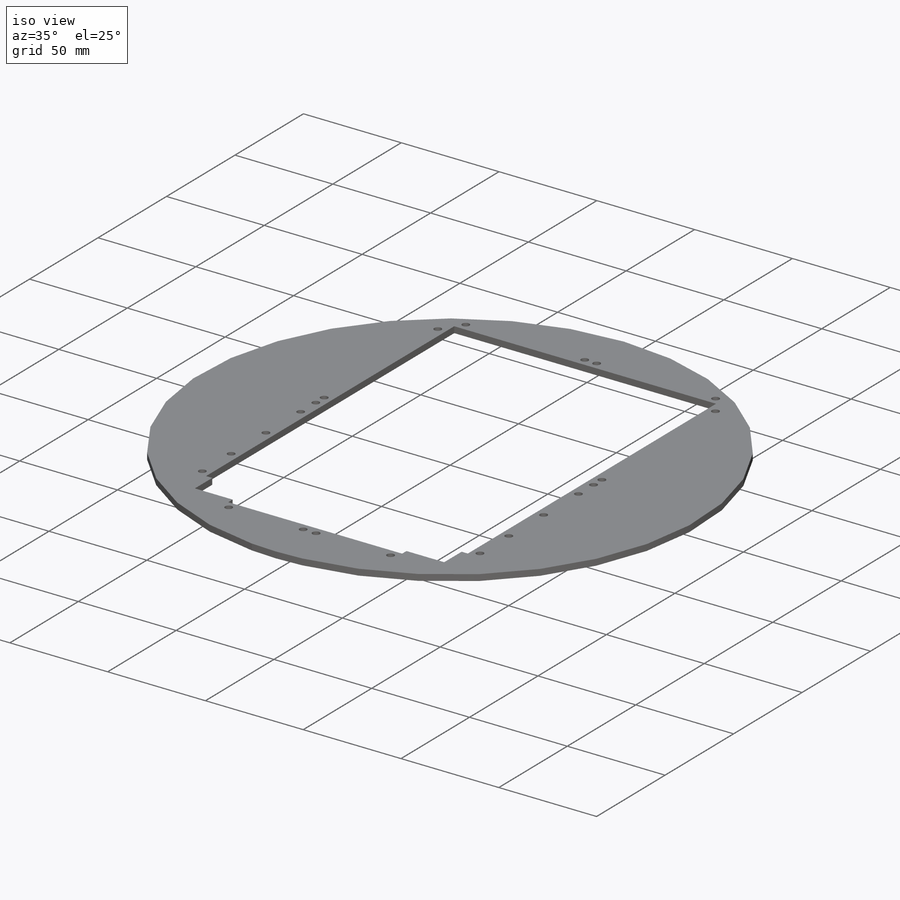
[diagram: iso view]
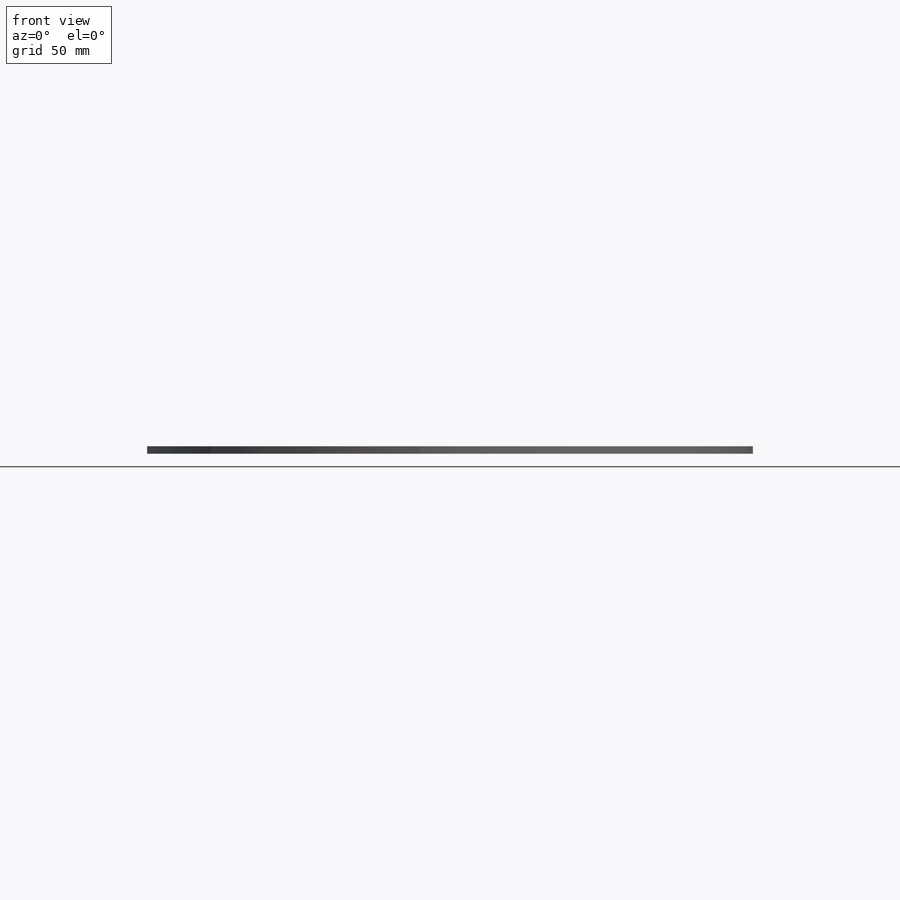
[diagram: front view]
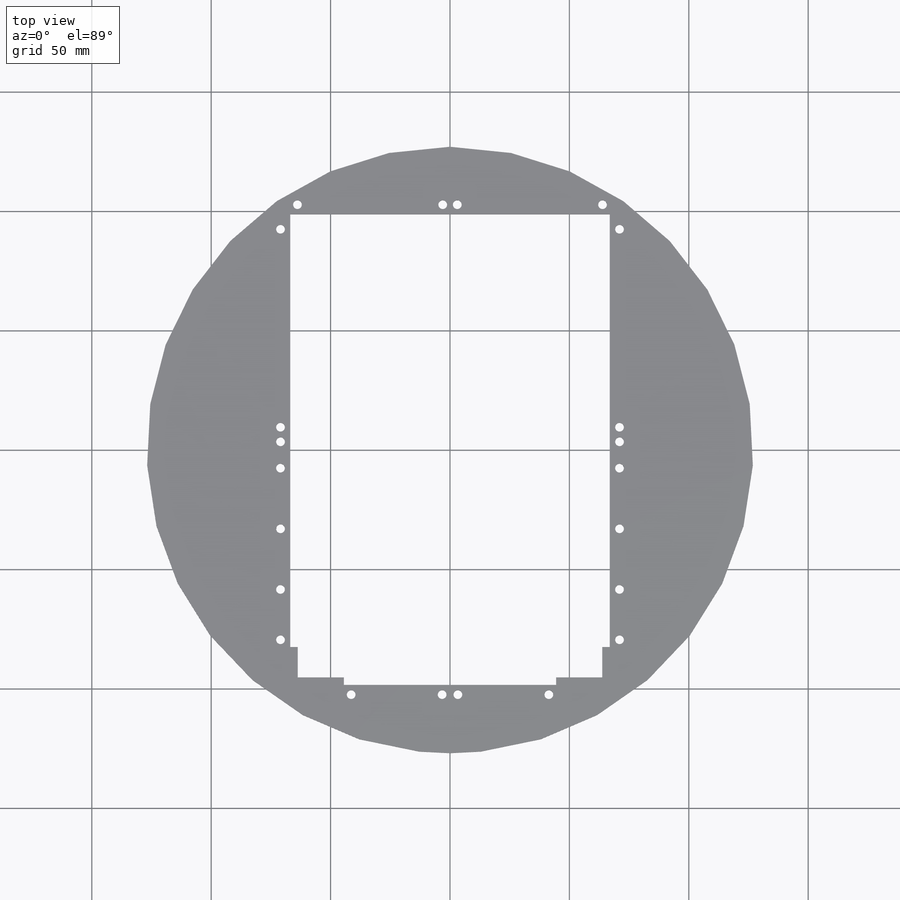
[diagram: top view]
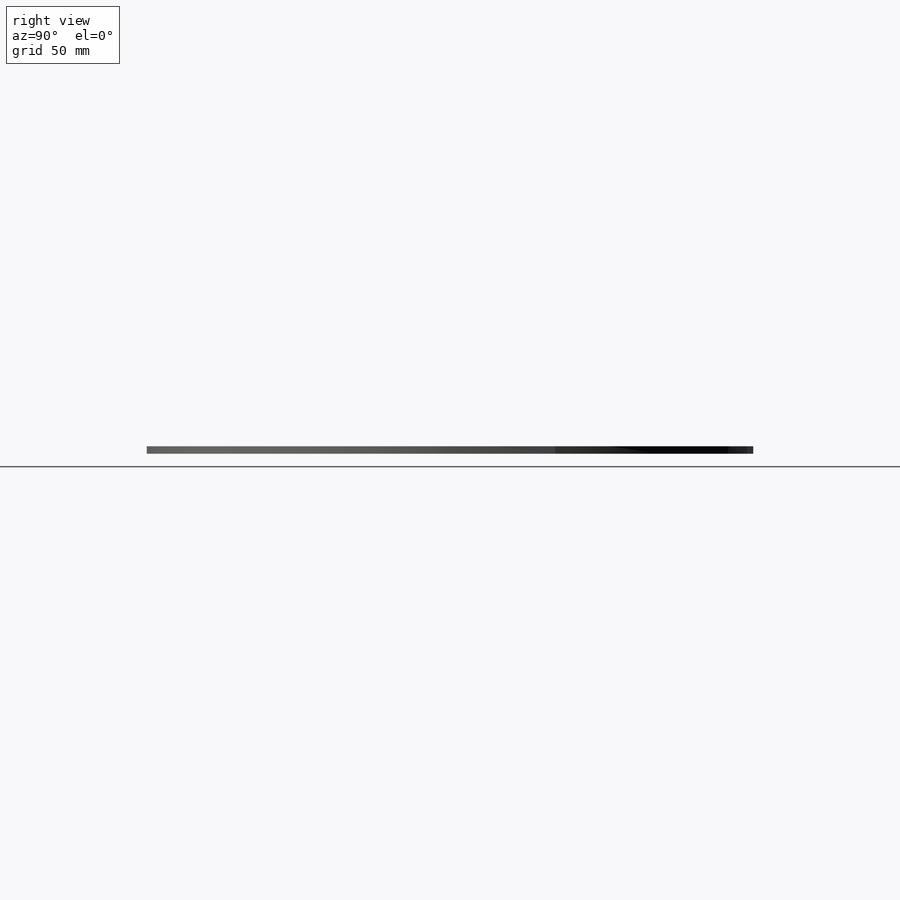
[diagram: right view]
SOLIDWORKS PART (.sldprt)
format: sldprt  version: not decoded by parser v0  size: 983,040 bytes
history: native  units: mm
features: sketch x16, cut_extrude x11, extrude x5, material x1 (+12 scaffold rows collapsed)
feature tree (45):
  scaffold x12  (default folders/planes/origin — collapsed)
  material  "Material <not specified>"
  sketch  "Sketch1"  dims[D1=254.0mm]
  extrude  "Boss-Extrude1"  Depth=3.175mm
  sketch  "Sketch2"  dims[c1.D1=~116.034478mm c1.D2=~82.48234mm c2.D1=127.0mm c2.D2=190.5mm]
  cut_extrude  "Cut-Extrude1"  Depth=3.175mm
  sketch  "Sketch3"  dims[c1.D1=~38.643603mm c1.D2=~81.925668mm c2.D1=71.12mm c2.D2=114.3mm c3.D1=32.385mm]
  extrude  "Boss-Extrude2"  Depth=3.175mm
  sketch  "Sketch4"  dims[c1.D1=6.35mm c1.D2=~16.563184mm c1.D3=~100.434515mm c2.D2=101.6mm c2.D3=6.35mm c2.D4=~16.563184mm c3.D3=6.35mm c3.D4=~64.485563mm c3.D1=6.35mm]
  cut_extrude  "Cut-Extrude2"  Depth=3.175mm
  sketch  "Sketch5"  dims[D1=3.175mm D2=101.6mm]
  extrude  "Boss-Extrude5"  [1 undecoded]
  sketch  "Sketch6"  dims[D1=32.385mm D2=114.3mm]
  cut_extrude  "Cut-Extrude3"  [1 undecoded]
  sketch  "Sketch7"  dims[D3=3.6576mm D6=3.6576mm D1=3.048mm D2=4.064mm D4=4.064mm D5=3.302mm]
  cut_extrude  "Cut-Extrude4"  [1 undecoded]
  sketch  "Sketch8"  dims[c1.D1=3.175mm c1.D2=~11.699563mm c2.D1=3.175mm c2.D2=~10.444713mm c3.D1=6.35mm c3.D2=6.35mm]
  extrude  "Boss-Extrude6"  Depth=3.175mm
  sketch  "Sketch9"  dims[D5=3.6576mm D6=3.6576mm D1=3.048mm D2=4.064mm D3=3.048mm D4=4.064mm]
  cut_extrude  "Cut-Extrude5"  Depth=3.175mm
  sketch  "Sketch10"  dims[D1=3.6576mm D2=3.6576mm]
  extrude  "Boss-Extrude7"  Depth=3.175mm
  sketch  "Sketch11"  dims[D2=190.5mm D1=0.254mm]
  cut_extrude  "Cut-Extrude6"  [1 undecoded]
  sketch  "Sketch13"  dims[c1.D1=~145.940352mm c1.D2=~8.856955mm c2.D1=~145.940352mm c2.D2=~14.944101mm c3.D1=3.175mm c3.D2=3.175mm c3.D3=178.054mm c3.D4=178.054mm]
  cut_extrude  "Cut-Extrude8"  [1 undecoded]
  sketch  "Sketch14"  dims[c1.D3=3.6576mm c1.D6=3.6576mm c1.D9=3.6576mm c1.D10=3.6576mm c1.D1=3.048mm c1.D2=4.064mm c1.D4=3.048mm c1.D5=4.064mm c1.D7=78.105mm c1.D8=82.931mm c2.D7=82.931mm]
  cut_extrude  "Cut-Extrude9"  [1 undecoded]
  sketch  "Sketch15"  dims[c1.D1=~185.072005mm c1.D2=45.6832mm c2.D1=133.858mm c2.D2=~6.238297mm c3.D1=3.175mm]
  cut_extrude  "Cut-Extrude10"  [1 undecoded]
  sketch  "Sketch16"  dims[c1.D5=3.6576mm c1.D6=3.6576mm c1.D1=3.048mm c1.D2=4.064mm c1.D3=3.048mm c1.D4=4.064mm c2.D3=4.064mm c2.D4=3.048mm]
  cut_extrude  "Cut-Extrude11"  [1 undecoded]
  sketch  "Sketch17"  dims[c1.D3=3.6576mm c1.D4=3.6576mm c1.D6=3.6576mm c2.D4=3.6576mm c2.D1=4.826mm c2.D2=11.049mm c2.D5=25.4mm c2.D7=~98.000262mm c3.D1=25.4mm]
  cut_extrude  "Cut-Extrude12"  [1 undecoded]
decode coverage: 23 of 32 modeling features carry decoded parameters
note: ~ marks probable driven/reference dimensions
note: 9 parameter values undecoded
summary: no parameter record found for 9 features
note: suppression state not decoded; provenance and decode notes live in map.json
